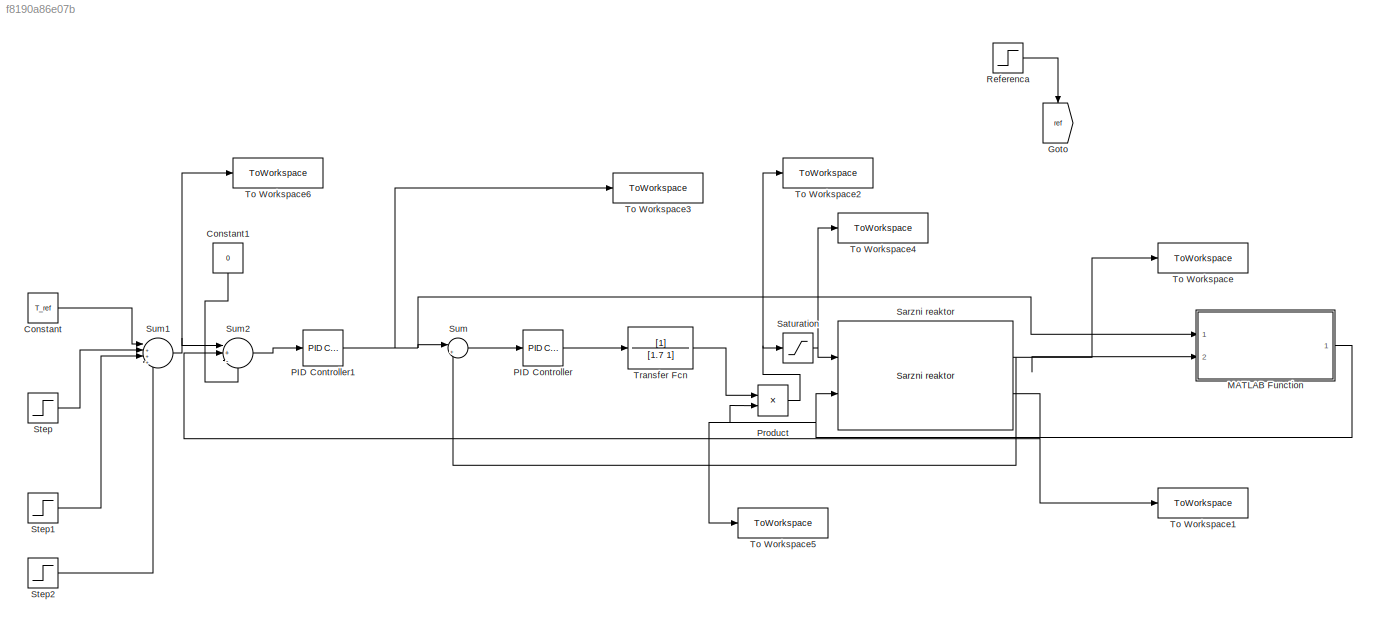
MODEL slx_f8190a86e07b
KIND model
CONFIG AbsTol = auto
CONFIG EnableMultiTasking = off
CONFIG FixedStep = auto
CONFIG MaxStep = auto
CONFIG MinStep = auto
CONFIG RelTol = 1e-3
CONFIG SampleTimeConstraint = Unconstrained
CONFIG SolverName = VariableStepAuto
CONFIG StartTime = 0.0
CONFIG StopTime = tSim
BLOCK [Constant] Constant
  Value = T_ref
BLOCK [Constant] Constant1
  NameLocation = left
  Value = 0
BLOCK [Goto] Goto
  GotoTag = ref
  NameLocation = left
  TagVisibility = global
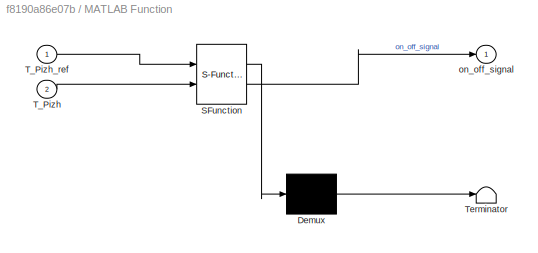
BLOCK [SubSystem] MATLAB Function
  AncestorBlock = reaktor/MATLAB Function
  ErrorFcn = Stateflow.Translate.translate
  PermitHierarchicalResolution = ExplicitOnly
  Ports = [2, 1]
  RequestExecContextInheritance = off
  SFBlockType = MATLAB Function
  TreatAsAtomicUnit = on
BLOCK [Demux] MATLAB Function/ Demux 
  Outputs = 1
  Ports = [1, 1]
BLOCK [S-Function] MATLAB Function/ SFunction 
  EnableBusSupport = on
  FunctionName = sf_sfun
  PortCounts = [2 2]
  Ports = [2, 2]
  SFcnIsStateOwnerBlock = off
  SFunctionDeploymentMode = off
  Tag = Stateflow S-Function 1
BLOCK [Terminator] MATLAB Function/ Terminator 
BLOCK [Inport] MATLAB Function/T_Pizh
  Port = 2
BLOCK [Inport] MATLAB Function/T_Pizh_ref
BLOCK [Outport] MATLAB Function/on_off_signal
BLOCK [Reference] PID Controller  REF=pid_lib/PID Controller
  Ports = [1, 1]
  SourceBlock = pid_lib/PID Controller
  SourceProductBaseCode = SL
  SourceType = PID 1dof
BLOCK [Reference] PID Controller1  REF=pid_lib/PID Controller
  Ports = [1, 1]
  SourceBlock = pid_lib/PID Controller
  SourceProductBaseCode = SL
  SourceType = PID 1dof
BLOCK [Product] Product
  Ports = [2, 1]
BLOCK [Step] Referenca
  After = 45
  Before = 40
  SampleTime = 0
  Time = 10000
BLOCK [Reference] Sarzni reaktor  REF=reaktor/Sarzni reaktor
  Ports = [2, 2]
  SourceBlock = reaktor/Sarzni reaktor
  SourceType = Sarzni reaktor
BLOCK [Saturate] Saturation
  LowerLimit = 0
  UpperLimit = 1
BLOCK [Step] Step
  After = -6
  SampleTime = 1
  Time = 10000
BLOCK [Step] Step1
  After = 4
  SampleTime = 1
  Time = 15000
BLOCK [Step] Step2
  After = -17
  SampleTime = 1
  Time = 20000
BLOCK [Sum] Sum
  Inputs = |+-
  Ports = [2, 1]
BLOCK [Sum] Sum1
  Inputs = |++++
  Ports = [4, 1]
BLOCK [Sum] Sum2
  Inputs = |+-+
  Ports = [3, 1]
BLOCK [ToWorkspace] To Workspace
  FixptAsFi = on
  MaxDataPoints = inf
  Ports = [1]
  SampleTime = -1
  SaveFormat = Timeseries
  VariableName = T_Pizh
BLOCK [ToWorkspace] To Workspace1
  FixptAsFi = on
  MaxDataPoints = inf
  Ports = [1]
  SampleTime = -1
  SaveFormat = Timeseries
  VariableName = T
BLOCK [ToWorkspace] To Workspace2
  FixptAsFi = on
  MaxDataPoints = inf
  Ports = [1]
  SampleTime = -1
  SaveFormat = Timeseries
  VariableName = PID_INTERNAL
BLOCK [ToWorkspace] To Workspace3
  FixptAsFi = on
  MaxDataPoints = inf
  Ports = [1]
  SampleTime = -1
  SaveFormat = Timeseries
  VariableName = PID_EXTERNAL
BLOCK [ToWorkspace] To Workspace4
  FixptAsFi = on
  MaxDataPoints = inf
  Ports = [1]
  SampleTime = -1
  SaveFormat = Timeseries
  VariableName = k_valve
BLOCK [ToWorkspace] To Workspace5
  FixptAsFi = on
  MaxDataPoints = inf
  Ports = [1]
  SampleTime = -1
  SaveFormat = Timeseries
  VariableName = on_off_input
BLOCK [ToWorkspace] To Workspace6
  FixptAsFi = on
  MaxDataPoints = inf
  Ports = [1]
  SampleTime = -1
  SaveFormat = Timeseries
  VariableName = T_reference
BLOCK [TransferFcn] Transfer Fcn
  Denominator = [1.7 1]
LINE Constant1:1 -> Sum2:3
LINE Constant:1 -> Sum1:1
NET MATLAB Function:1 -> Product:2, Sarzni reaktor:2, To Workspace5:1
NET PID Controller1:1 -> MATLAB Function:1, Sum:1, To Workspace3:1
LINE PID Controller:1 -> Transfer Fcn:1
NET Product:1 -> Saturation:1, To Workspace2:1
LINE Referenca:1 -> Goto:1
NET Sarzni reaktor:1 -> MATLAB Function:2, Sum:2, To Workspace:1
NET Sarzni reaktor:2 -> Sum2:2, To Workspace1:1
NET Saturation:1 -> Sarzni reaktor:1, To Workspace4:1
LINE Step1:1 -> Sum1:3
LINE Step2:1 -> Sum1:4
LINE Step:1 -> Sum1:2
NET Sum1:1 -> Sum2:1, To Workspace6:1
LINE Sum2:1 -> PID Controller1:1
LINE Sum:1 -> PID Controller:1
LINE Transfer Fcn:1 -> Product:1
note: NET lines group one-source signal fan-out (src -> all destinations, sorted); 1:1 wires keep LINE
CHART MATLAB Function states=1 transitions=1
  STATE_LABEL 'eML_blk_kernel()'
  STATE_LABEL 'SCRIPT:\nfunction on_off_signal = hot_cold_selection_logic_asymmetric(T_Pizh_ref, T_Pizh)\n  % Defines the switching signal for hot (1) or cold (-1) water.\n  % Implements ASYMMETRIC hysteresis to prevent rapid valve switching.\n\n  persistent current_selection; % Remembers the current valve state: 1 for hot, -1 for cold.\n\n  % --- Asymmetric Hysteresis Offsets (in degrees Celsius) ---\n  % These are the...<+2649ch>'
CHART  states=0 transitions=0
